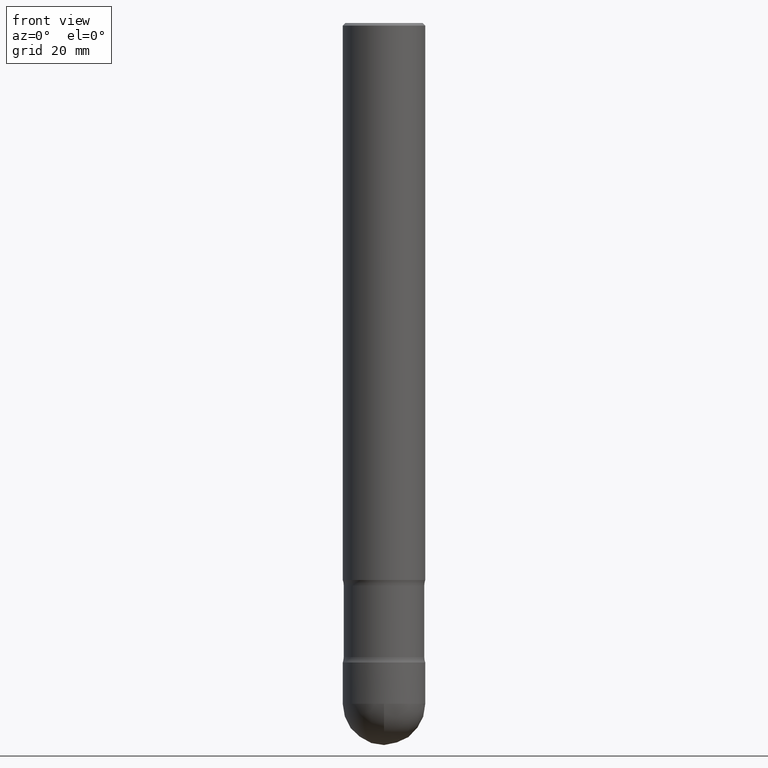
[diagram: clean part render]
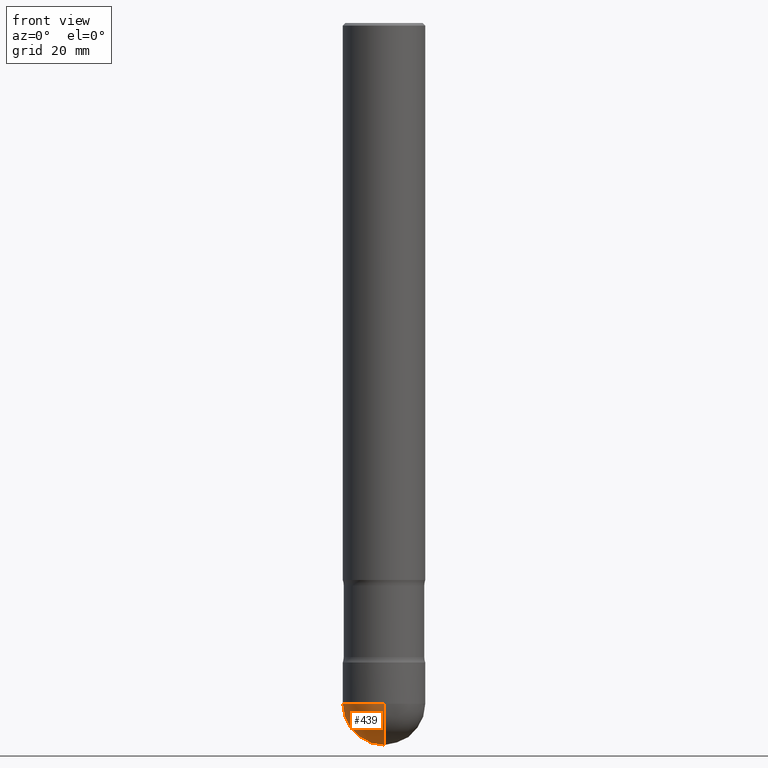
[diagram: same view with one face highlighted and labeled with its STEP entity id]
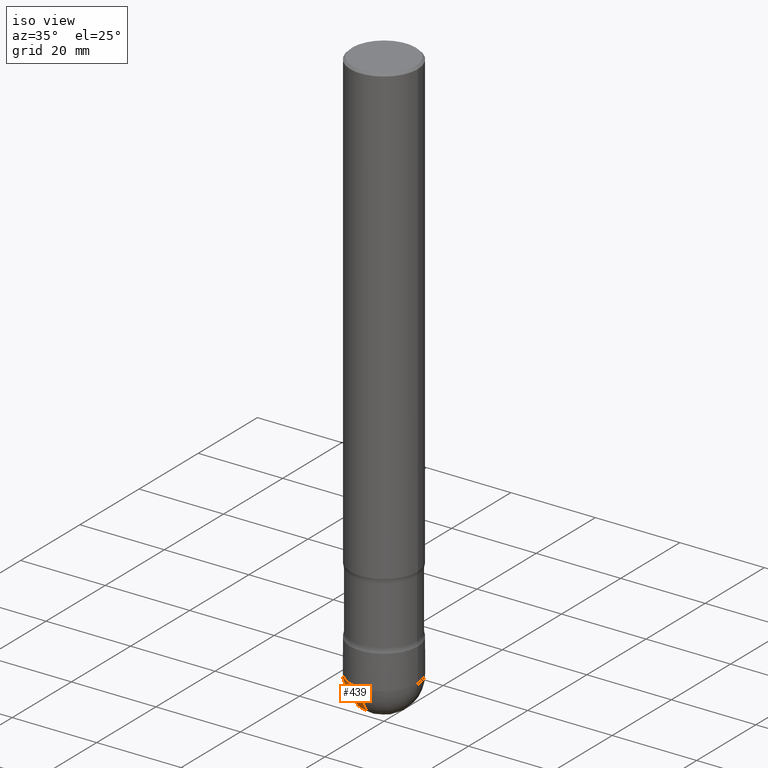
[diagram: same view with one face highlighted and labeled with its STEP entity id]
A machine part, front view. The second image highlights one B-rep face of the part: STEP entity #439.
A second angle (iso view) of the same face is appended — the face is thin or edge-on in the first view.
In plain terms, the highlighted spherical surface has radius 7.9997 mm.
Its self-contained STEP definition (entity closure, byte-faithful):
#4 = ORIENTED_EDGE ( 'NONE', *, *, #110, .F. ) ;
#7 = DIRECTION ( 'NONE',  ( 1.000000000000000000, -6.982962677686271444E-15, 0.000000000000000000 ) ) ;
#41 = DIRECTION ( 'NONE',  ( -2.445468806185136597E-29, 3.491481338843145583E-15, 1.000000000000000000 ) ) ;
#43 = AXIS2_PLACEMENT_3D ( 'NONE', #400, #54, #55 ) ;
#54 = DIRECTION ( 'NONE',  ( 1.000000000000000000, -6.982962677686265922E-15, 4.883557194083112340E-29 ) ) ;
#55 = DIRECTION ( 'NONE',  ( 6.982962677686266711E-15, 1.000000000000000000, 0.000000000000000000 ) ) ;
#75 = CIRCLE ( 'NONE', #155, 0.3149499999999997302 ) ;
#79 = VERTEX_POINT ( 'NONE', #530 ) ;
#97 = DIRECTION ( 'NONE',  ( -1.000000000000000000, 6.982962677686266711E-15, -4.883557194083112901E-29 ) ) ;
#110 = EDGE_CURVE ( 'NONE', #130, #199, #249, .T. ) ;
#112 = EDGE_LOOP ( 'NONE', ( #360, #370, #481, #4 ) ) ;
#130 = VERTEX_POINT ( 'NONE', #317 ) ;
#131 = VERTEX_POINT ( 'NONE', #320 ) ;
#155 = AXIS2_PLACEMENT_3D ( 'NONE', #331, #291, #305 ) ;
#182 = CARTESIAN_POINT ( 'NONE',  ( 1.270873456542322947E-28, -1.814470479576700463E-14, -5.196850000000000414 ) ) ;
#197 = CARTESIAN_POINT ( 'NONE',  ( -0.3149499999999991195, -1.535702942565624815E-14, -5.196850000000000414 ) ) ;
#199 = VERTEX_POINT ( 'NONE', #197 ) ;
#236 = DIRECTION ( 'NONE',  ( -2.445468806185136597E-29, 3.491481338843145583E-15, 1.000000000000000000 ) ) ;
#249 = CIRCLE ( 'NONE', #468, 0.3149499999999991195 ) ;
#271 = CARTESIAN_POINT ( 'NONE',  ( 1.276832682828469266E-28, -1.805936528356841694E-14, -5.196849999999999525 ) ) ;
#291 = DIRECTION ( 'NONE',  ( -1.000000000000000000, 7.105427357601001070E-15, -4.926315508542082329E-29 ) ) ;
#305 = DIRECTION ( 'NONE',  ( -7.105427357601000281E-15, -1.000000000000000000, 0.000000000000000000 ) ) ;
#307 = AXIS2_PLACEMENT_3D ( 'NONE', #514, #41, #428 ) ;
#317 = CARTESIAN_POINT ( 'NONE',  ( 2.199284095337412933E-15, 0.3149499999999813005, -5.196850000000001302 ) ) ;
#320 = CARTESIAN_POINT ( 'NONE',  ( 1.355199395993155360E-28, -1.913972220576749197E-14, -5.511799999999999145 ) ) ;
#331 = CARTESIAN_POINT ( 'NONE',  ( 1.276832682828469266E-28, -1.805936528356841694E-14, -5.196849999999999525 ) ) ;
#340 = EDGE_CURVE ( 'NONE', #131, #79, #75, .T. ) ;
#356 = EDGE_CURVE ( 'NONE', #199, #79, #404, .T. ) ;
#357 = FACE_OUTER_BOUND ( 'NONE', #112, .T. ) ;
#360 = ORIENTED_EDGE ( 'NONE', *, *, #482, .F. ) ;
#365 = SPHERICAL_SURFACE ( 'NONE', #515, 0.3149499999999997302 ) ;
#370 = ORIENTED_EDGE ( 'NONE', *, *, #340, .T. ) ;
#400 = CARTESIAN_POINT ( 'NONE',  ( 1.276832682828469266E-28, -1.805936528356841694E-14, -5.196849999999999525 ) ) ;
#404 = CIRCLE ( 'NONE', #307, 0.3149499999999991195 ) ;
#428 = DIRECTION ( 'NONE',  ( 1.000000000000000000, -6.982962677686271444E-15, 0.000000000000000000 ) ) ;
#439 = ADVANCED_FACE ( 'NONE', ( #357 ), #365, .T. ) ;
#444 = DIRECTION ( 'NONE',  ( 6.982962677686266711E-15, 1.000000000000000000, -3.469564049740295925E-15 ) ) ;
#468 = AXIS2_PLACEMENT_3D ( 'NONE', #182, #236, #7 ) ;
#479 = CIRCLE ( 'NONE', #43, 0.3149499999999997302 ) ;
#481 = ORIENTED_EDGE ( 'NONE', *, *, #356, .F. ) ;
#482 = EDGE_CURVE ( 'NONE', #131, #130, #479, .T. ) ;
#514 = CARTESIAN_POINT ( 'NONE',  ( 1.270873456542322947E-28, -1.814470479576700463E-14, -5.196850000000000414 ) ) ;
#515 = AXIS2_PLACEMENT_3D ( 'NONE', #271, #97, #444 ) ;
#530 = CARTESIAN_POINT ( 'NONE',  ( -2.237854346276303456E-15, -0.3149500000000174937, -5.196849999999999525 ) ) ;